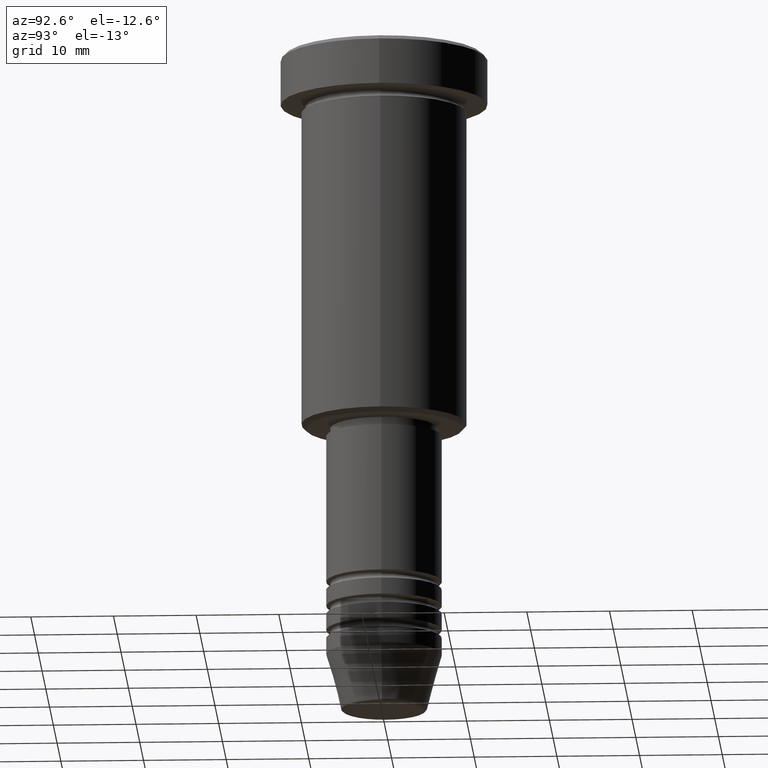
[diagram: clean part render]
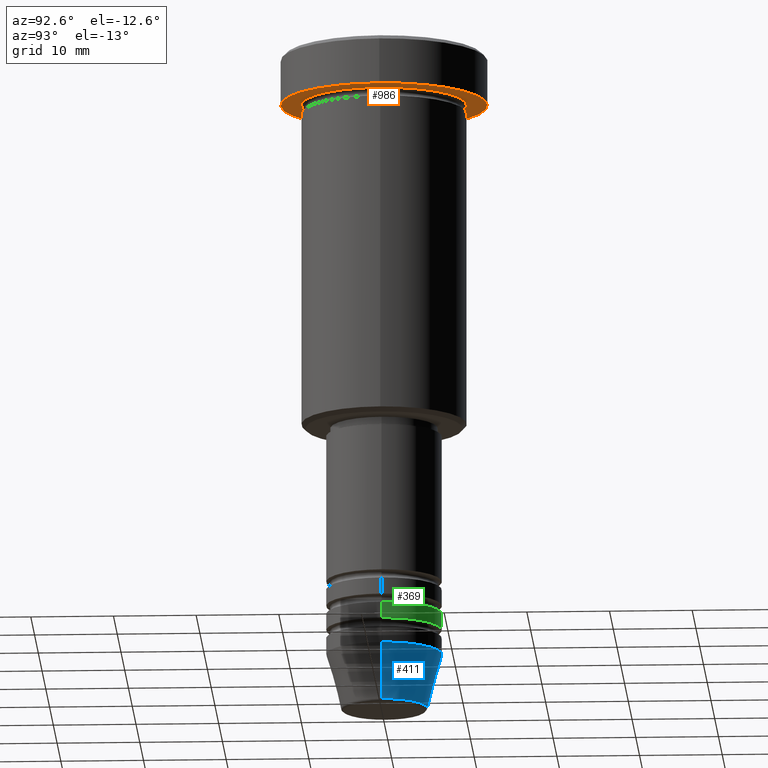
[diagram: same view with three faces highlighted in distinct colors, each labeled with its STEP entity id]
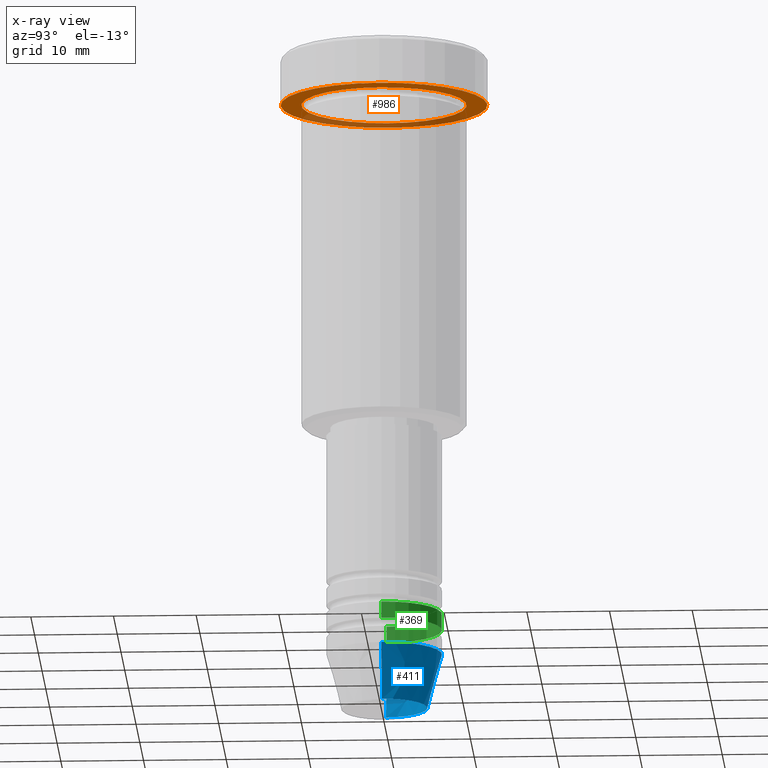
[diagram: x-ray of the same camera — body ghosted, the three highlighted faces saturated]
A machine part, auxiliary view with three faces highlighted in distinct colors.
The next image is the same camera in x-ray (body ghosted, the three faces saturated) — at least one of them is partly hidden behind the body in this view.
Their STEP definitions:

[orange] entity #986 — the highlighted planar face has unit normal (0, 0, -1).
#14 = EDGE_LOOP ( 'NONE', ( #1032, #450 ) ) ;
#75 = CARTESIAN_POINT ( 'NONE',  ( 0.000000000000000000, 0.000000000000000000, -5.999999999999996447 ) ) ;
#78 = FACE_OUTER_BOUND ( 'NONE', #667, .T. ) ;
#92 = CIRCLE ( 'NONE', #997, 12.50000000000000000 ) ;
#123 = DIRECTION ( 'NONE',  ( -0.000000000000000000, -0.000000000000000000, 1.000000000000000000 ) ) ;
#165 = ORIENTED_EDGE ( 'NONE', *, *, #727, .F. ) ;
#168 = DIRECTION ( 'NONE',  ( -1.000000000000000000, 0.000000000000000000, -0.000000000000000000 ) ) ;
#180 = CIRCLE ( 'NONE', #255, 12.50000000000000000 ) ;
#225 = CARTESIAN_POINT ( 'NONE',  ( 0.000000000000000000, 0.000000000000000000, -5.999999999999996447 ) ) ;
#243 = CARTESIAN_POINT ( 'NONE',  ( 12.50000000000000000, 0.000000000000000000, -5.999999999999996447 ) ) ;
#255 = AXIS2_PLACEMENT_3D ( 'NONE', #379, #910, #653 ) ;
#274 = AXIS2_PLACEMENT_3D ( 'NONE', #75, #797, #431 ) ;
#315 = DIRECTION ( 'NONE',  ( -0.000000000000000000, -0.000000000000000000, 1.000000000000000000 ) ) ;
#379 = CARTESIAN_POINT ( 'NONE',  ( 0.000000000000000000, 0.000000000000000000, -5.999999999999996447 ) ) ;
#396 = CARTESIAN_POINT ( 'NONE',  ( 0.000000000000000000, 0.000000000000000000, -5.999999999999996447 ) ) ;
#407 = VERTEX_POINT ( 'NONE', #1164 ) ;
#424 = CARTESIAN_POINT ( 'NONE',  ( -10.00000000000000000, 0.000000000000000000, -5.999999999999996447 ) ) ;
#431 = DIRECTION ( 'NONE',  ( -1.000000000000000000, 0.000000000000000000, 0.000000000000000000 ) ) ;
#450 = ORIENTED_EDGE ( 'NONE', *, *, #497, .T. ) ;
#492 = DIRECTION ( 'NONE',  ( -1.000000000000000000, 0.000000000000000000, 0.000000000000000000 ) ) ;
#497 = EDGE_CURVE ( 'NONE', #407, #975, #773, .T. ) ;
#587 = EDGE_CURVE ( 'NONE', #963, #689, #180, .T. ) ;
#612 = AXIS2_PLACEMENT_3D ( 'NONE', #716, #982, #168 ) ;
#653 = DIRECTION ( 'NONE',  ( 1.000000000000000000, 0.000000000000000000, 0.000000000000000000 ) ) ;
#654 = AXIS2_PLACEMENT_3D ( 'NONE', #225, #123, #492 ) ;
#667 = EDGE_LOOP ( 'NONE', ( #868, #165 ) ) ;
#689 = VERTEX_POINT ( 'NONE', #1047 ) ;
#716 = CARTESIAN_POINT ( 'NONE',  ( 0.000000000000000000, 12.50000000000000000, -5.999999999999996447 ) ) ;
#727 = EDGE_CURVE ( 'NONE', #689, #963, #92, .T. ) ;
#773 = CIRCLE ( 'NONE', #274, 10.00000000000000000 ) ;
#797 = DIRECTION ( 'NONE',  ( -0.000000000000000000, -0.000000000000000000, 1.000000000000000000 ) ) ;
#868 = ORIENTED_EDGE ( 'NONE', *, *, #587, .F. ) ;
#892 = FACE_BOUND ( 'NONE', #14, .T. ) ;
#910 = DIRECTION ( 'NONE',  ( -0.000000000000000000, -0.000000000000000000, 1.000000000000000000 ) ) ;
#957 = DIRECTION ( 'NONE',  ( 1.000000000000000000, 0.000000000000000000, 0.000000000000000000 ) ) ;
#963 = VERTEX_POINT ( 'NONE', #243 ) ;
#975 = VERTEX_POINT ( 'NONE', #424 ) ;
#982 = DIRECTION ( 'NONE',  ( 0.000000000000000000, 0.000000000000000000, -1.000000000000000000 ) ) ;
#986 = ADVANCED_FACE ( 'NONE', ( #892, #78 ), #1167, .T. ) ;
#997 = AXIS2_PLACEMENT_3D ( 'NONE', #396, #315, #957 ) ;
#1032 = ORIENTED_EDGE ( 'NONE', *, *, #1174, .T. ) ;
#1047 = CARTESIAN_POINT ( 'NONE',  ( -12.50000000000000000, 1.530808498934191521E-15, -5.999999999999996447 ) ) ;
#1050 = CIRCLE ( 'NONE', #654, 10.00000000000000000 ) ;
#1164 = CARTESIAN_POINT ( 'NONE',  ( 10.00000000000000000, 1.224646799147353256E-15, -5.999999999999996447 ) ) ;
#1167 = PLANE ( 'NONE',  #612 ) ;
#1174 = EDGE_CURVE ( 'NONE', #975, #407, #1050, .T. ) ;

[blue] entity #411 — the highlighted conical surface has half-angle 15 deg.
#45 = EDGE_LOOP ( 'NONE', ( #844, #56, #637, #116 ) ) ;
#56 = ORIENTED_EDGE ( 'NONE', *, *, #691, .T. ) ;
#84 = DIRECTION ( 'NONE',  ( -0.000000000000000000, -0.000000000000000000, 1.000000000000000000 ) ) ;
#88 = AXIS2_PLACEMENT_3D ( 'NONE', #628, #985, #257 ) ;
#93 = DIRECTION ( 'NONE',  ( -0.000000000000000000, -0.000000000000000000, 1.000000000000000000 ) ) ;
#116 = ORIENTED_EDGE ( 'NONE', *, *, #171, .F. ) ;
#166 = CARTESIAN_POINT ( 'NONE',  ( 5.223655072137187716, 0.000000000000000000, -80.62940952255128479 ) ) ;
#171 = EDGE_CURVE ( 'NONE', #523, #1082, #1024, .T. ) ;
#232 = DIRECTION ( 'NONE',  ( 0.2588190451025214056, 0.000000000000000000, 0.9659258262890680902 ) ) ;
#247 = FACE_OUTER_BOUND ( 'NONE', #45, .T. ) ;
#257 = DIRECTION ( 'NONE',  ( 1.000000000000000000, 0.000000000000000000, 0.000000000000000000 ) ) ;
#288 = VECTOR ( 'NONE', #232, 1000.000000000000000 ) ;
#317 = CARTESIAN_POINT ( 'NONE',  ( -5.223655072137187716, 7.484830028987059188E-16, -80.62940952255128479 ) ) ;
#363 = VERTEX_POINT ( 'NONE', #317 ) ;
#411 = ADVANCED_FACE ( 'NONE', ( #247 ), #635, .T. ) ;
#446 = DIRECTION ( 'NONE',  ( 1.000000000000000000, 0.000000000000000000, 0.000000000000000000 ) ) ;
#451 = EDGE_CURVE ( 'NONE', #1082, #532, #1091, .T. ) ;
#465 = CARTESIAN_POINT ( 'NONE',  ( 7.000000000000000000, 0.000000000000000000, -74.00000000000001421 ) ) ;
#523 = VERTEX_POINT ( 'NONE', #166 ) ;
#532 = VERTEX_POINT ( 'NONE', #1066 ) ;
#609 = CARTESIAN_POINT ( 'NONE',  ( 0.000000000000000000, 0.000000000000000000, -74.00000000000001421 ) ) ;
#628 = CARTESIAN_POINT ( 'NONE',  ( 0.000000000000000000, 0.000000000000000000, -74.00000000000001421 ) ) ;
#635 = CONICAL_SURFACE ( 'NONE', #88, 7.000000000000000000, 0.2617993877991501295 ) ;
#637 = ORIENTED_EDGE ( 'NONE', *, *, #451, .F. ) ;
#691 = EDGE_CURVE ( 'NONE', #363, #532, #1042, .T. ) ;
#692 = CIRCLE ( 'NONE', #712, 5.223655072137187716 ) ;
#712 = AXIS2_PLACEMENT_3D ( 'NONE', #721, #84, #812 ) ;
#714 = AXIS2_PLACEMENT_3D ( 'NONE', #609, #93, #446 ) ;
#721 = CARTESIAN_POINT ( 'NONE',  ( 0.000000000000000000, 0.000000000000000000, -80.62940952255128479 ) ) ;
#812 = DIRECTION ( 'NONE',  ( 1.000000000000000000, 0.000000000000000000, 0.000000000000000000 ) ) ;
#844 = ORIENTED_EDGE ( 'NONE', *, *, #879, .T. ) ;
#875 = DIRECTION ( 'NONE',  ( -0.2588190451025214056, 3.169619151431772953E-17, 0.9659258262890680902 ) ) ;
#879 = EDGE_CURVE ( 'NONE', #523, #363, #692, .T. ) ;
#985 = DIRECTION ( 'NONE',  ( -0.000000000000000000, -0.000000000000000000, 1.000000000000000000 ) ) ;
#1024 = LINE ( 'NONE', #1113, #288 ) ;
#1029 = CARTESIAN_POINT ( 'NONE',  ( -7.000000000000000000, 8.572527594031473190E-16, -74.00000000000001421 ) ) ;
#1042 = LINE ( 'NONE', #1029, #1071 ) ;
#1066 = CARTESIAN_POINT ( 'NONE',  ( -7.000000000000000000, 8.572527594031473190E-16, -74.00000000000001421 ) ) ;
#1071 = VECTOR ( 'NONE', #875, 1000.000000000000000 ) ;
#1082 = VERTEX_POINT ( 'NONE', #465 ) ;
#1091 = CIRCLE ( 'NONE', #714, 7.000000000000000000 ) ;
#1113 = CARTESIAN_POINT ( 'NONE',  ( 7.000000000000000000, 0.000000000000000000, -74.00000000000001421 ) ) ;

[green] entity #369 — the highlighted cylindrical surface (partial cylindrical patch) has radius 7 mm, axis along (-0, -0, 1).
#13 = CARTESIAN_POINT ( 'NONE',  ( 7.000000000000000000, 0.000000000000000000, -71.00000000000000000 ) ) ;
#63 = CYLINDRICAL_SURFACE ( 'NONE', #107, 7.000000000000000000 ) ;
#86 = CARTESIAN_POINT ( 'NONE',  ( 0.000000000000000000, 0.000000000000000000, -68.99999999999998579 ) ) ;
#104 = VERTEX_POINT ( 'NONE', #1084 ) ;
#107 = AXIS2_PLACEMENT_3D ( 'NONE', #415, #1044, #484 ) ;
#117 = AXIS2_PLACEMENT_3D ( 'NONE', #86, #427, #718 ) ;
#173 = CARTESIAN_POINT ( 'NONE',  ( 7.000000000000000000, 0.000000000000000000, -68.99999999999998579 ) ) ;
#179 = ORIENTED_EDGE ( 'NONE', *, *, #353, .T. ) ;
#218 = DIRECTION ( 'NONE',  ( -0.000000000000000000, -0.000000000000000000, 1.000000000000000000 ) ) ;
#301 = CARTESIAN_POINT ( 'NONE',  ( -7.000000000000000000, 8.572527594031473190E-16, -68.99999999999998579 ) ) ;
#335 = VERTEX_POINT ( 'NONE', #301 ) ;
#341 = DIRECTION ( 'NONE',  ( -0.000000000000000000, -0.000000000000000000, 1.000000000000000000 ) ) ;
#353 = EDGE_CURVE ( 'NONE', #104, #335, #399, .T. ) ;
#369 = ADVANCED_FACE ( 'NONE', ( #948 ), #63, .T. ) ;
#399 = LINE ( 'NONE', #776, #883 ) ;
#415 = CARTESIAN_POINT ( 'NONE',  ( 0.000000000000000000, 0.000000000000000000, 0.000000000000000000 ) ) ;
#427 = DIRECTION ( 'NONE',  ( -0.000000000000000000, -0.000000000000000000, 1.000000000000000000 ) ) ;
#443 = EDGE_LOOP ( 'NONE', ( #1034, #179, #535, #630 ) ) ;
#484 = DIRECTION ( 'NONE',  ( 1.000000000000000000, 0.000000000000000000, 0.000000000000000000 ) ) ;
#489 = EDGE_CURVE ( 'NONE', #930, #335, #786, .T. ) ;
#535 = ORIENTED_EDGE ( 'NONE', *, *, #489, .F. ) ;
#563 = DIRECTION ( 'NONE',  ( 1.000000000000000000, 0.000000000000000000, 0.000000000000000000 ) ) ;
#630 = ORIENTED_EDGE ( 'NONE', *, *, #931, .F. ) ;
#645 = VERTEX_POINT ( 'NONE', #13 ) ;
#718 = DIRECTION ( 'NONE',  ( 1.000000000000000000, 0.000000000000000000, 0.000000000000000000 ) ) ;
#725 = CARTESIAN_POINT ( 'NONE',  ( 0.000000000000000000, 0.000000000000000000, -71.00000000000000000 ) ) ;
#776 = CARTESIAN_POINT ( 'NONE',  ( -7.000000000000000000, 8.572527594031473190E-16, 0.000000000000000000 ) ) ;
#786 = CIRCLE ( 'NONE', #117, 7.000000000000000000 ) ;
#788 = CIRCLE ( 'NONE', #1169, 7.000000000000000000 ) ;
#883 = VECTOR ( 'NONE', #218, 1000.000000000000000 ) ;
#930 = VERTEX_POINT ( 'NONE', #173 ) ;
#931 = EDGE_CURVE ( 'NONE', #645, #930, #978, .T. ) ;
#948 = FACE_OUTER_BOUND ( 'NONE', #443, .T. ) ;
#978 = LINE ( 'NONE', #1057, #1026 ) ;
#998 = DIRECTION ( 'NONE',  ( -0.000000000000000000, -0.000000000000000000, 1.000000000000000000 ) ) ;
#1026 = VECTOR ( 'NONE', #341, 1000.000000000000000 ) ;
#1034 = ORIENTED_EDGE ( 'NONE', *, *, #1035, .T. ) ;
#1035 = EDGE_CURVE ( 'NONE', #645, #104, #788, .T. ) ;
#1044 = DIRECTION ( 'NONE',  ( -0.000000000000000000, -0.000000000000000000, 1.000000000000000000 ) ) ;
#1057 = CARTESIAN_POINT ( 'NONE',  ( 7.000000000000000000, 0.000000000000000000, 0.000000000000000000 ) ) ;
#1084 = CARTESIAN_POINT ( 'NONE',  ( -7.000000000000000000, 8.572527594031473190E-16, -71.00000000000000000 ) ) ;
#1169 = AXIS2_PLACEMENT_3D ( 'NONE', #725, #998, #563 ) ;